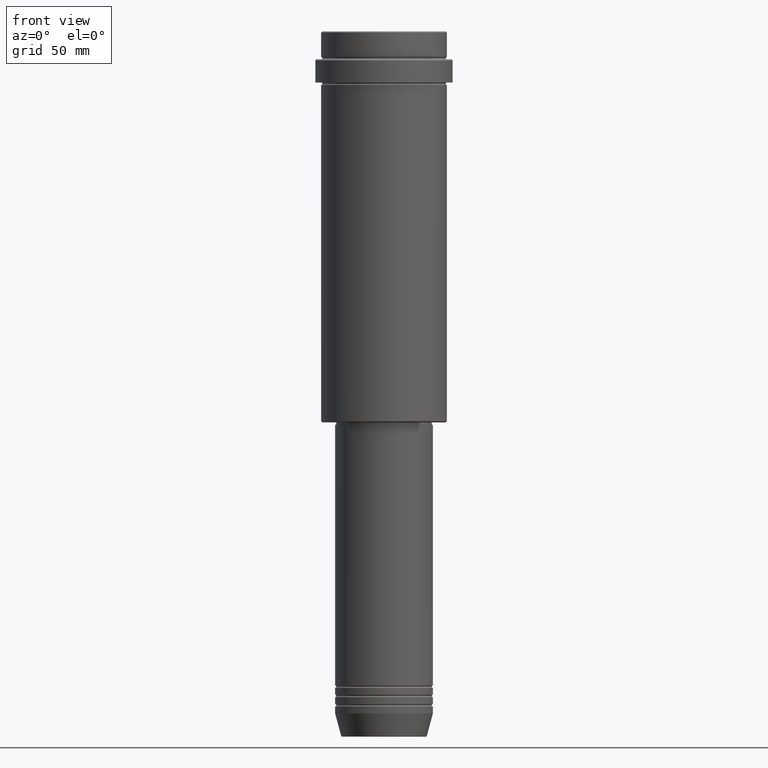
[diagram: clean part render]
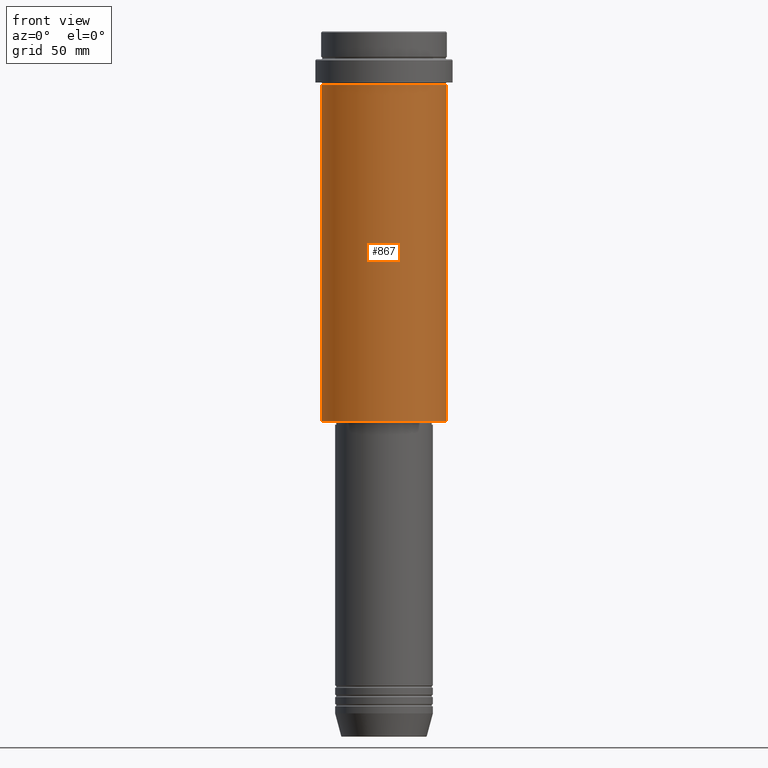
[diagram: same view with one face highlighted and labeled with its STEP entity id]
A machine part, front view. The second image highlights one B-rep face of the part: STEP entity #867.
In plain terms, the highlighted cylindrical surface (partial cylindrical patch) has radius 27 mm, axis along (-0, -0, 1).
Its self-contained STEP definition (entity closure, byte-faithful):
#12 = CARTESIAN_POINT ( 'NONE',  ( -27.00000000000000355, 3.306546357697854128E-15, -167.4999999999998863 ) ) ;
#14 = CARTESIAN_POINT ( 'NONE',  ( 0.000000000000000000, 0.000000000000000000, -167.4999999999998863 ) ) ;
#112 = EDGE_CURVE ( 'NONE', #1235, #725, #1195, .T. ) ;
#138 = DIRECTION ( 'NONE',  ( 1.000000000000000000, 0.000000000000000000, 0.000000000000000000 ) ) ;
#148 = DIRECTION ( 'NONE',  ( -0.000000000000000000, -0.000000000000000000, 1.000000000000000000 ) ) ;
#219 = EDGE_CURVE ( 'NONE', #789, #273, #1197, .T. ) ;
#273 = VERTEX_POINT ( 'NONE', #378 ) ;
#317 = EDGE_LOOP ( 'NONE', ( #362, #1416, #1361, #773 ) ) ;
#319 = CARTESIAN_POINT ( 'NONE',  ( 0.000000000000000000, 0.000000000000000000, 0.000000000000000000 ) ) ;
#357 = CARTESIAN_POINT ( 'NONE',  ( 0.000000000000000000, 0.000000000000000000, -23.00000000000001421 ) ) ;
#362 = ORIENTED_EDGE ( 'NONE', *, *, #940, .F. ) ;
#378 = CARTESIAN_POINT ( 'NONE',  ( 27.00000000000000355, 0.000000000000000000, -167.4999999999998863 ) ) ;
#384 = DIRECTION ( 'NONE',  ( -0.000000000000000000, -0.000000000000000000, 1.000000000000000000 ) ) ;
#393 = CARTESIAN_POINT ( 'NONE',  ( 27.00000000000000355, 0.000000000000000000, 0.000000000000000000 ) ) ;
#396 = VECTOR ( 'NONE', #148, 1000.000000000000000 ) ;
#420 = VECTOR ( 'NONE', #384, 1000.000000000000000 ) ;
#459 = CARTESIAN_POINT ( 'NONE',  ( -27.00000000000000355, 3.306546357697854128E-15, 0.000000000000000000 ) ) ;
#478 = LINE ( 'NONE', #459, #396 ) ;
#479 = DIRECTION ( 'NONE',  ( -0.000000000000000000, -0.000000000000000000, 1.000000000000000000 ) ) ;
#545 = DIRECTION ( 'NONE',  ( -1.000000000000000000, 0.000000000000000000, 0.000000000000000000 ) ) ;
#582 = AXIS2_PLACEMENT_3D ( 'NONE', #357, #479, #916 ) ;
#604 = AXIS2_PLACEMENT_3D ( 'NONE', #319, #1092, #138 ) ;
#621 = LINE ( 'NONE', #393, #420 ) ;
#651 = DIRECTION ( 'NONE',  ( -0.000000000000000000, -0.000000000000000000, 1.000000000000000000 ) ) ;
#661 = EDGE_CURVE ( 'NONE', #273, #725, #621, .T. ) ;
#725 = VERTEX_POINT ( 'NONE', #941 ) ;
#773 = ORIENTED_EDGE ( 'NONE', *, *, #112, .F. ) ;
#789 = VERTEX_POINT ( 'NONE', #12 ) ;
#860 = FACE_OUTER_BOUND ( 'NONE', #317, .T. ) ;
#867 = ADVANCED_FACE ( 'NONE', ( #860 ), #1293, .T. ) ;
#916 = DIRECTION ( 'NONE',  ( 1.000000000000000000, 0.000000000000000000, 0.000000000000000000 ) ) ;
#940 = EDGE_CURVE ( 'NONE', #789, #1235, #478, .T. ) ;
#941 = CARTESIAN_POINT ( 'NONE',  ( 27.00000000000000355, 0.000000000000000000, -23.00000000000001421 ) ) ;
#963 = AXIS2_PLACEMENT_3D ( 'NONE', #14, #651, #545 ) ;
#1092 = DIRECTION ( 'NONE',  ( -0.000000000000000000, -0.000000000000000000, 1.000000000000000000 ) ) ;
#1195 = CIRCLE ( 'NONE', #582, 27.00000000000000355 ) ;
#1197 = CIRCLE ( 'NONE', #963, 27.00000000000000355 ) ;
#1235 = VERTEX_POINT ( 'NONE', #1411 ) ;
#1293 = CYLINDRICAL_SURFACE ( 'NONE', #604, 27.00000000000000355 ) ;
#1361 = ORIENTED_EDGE ( 'NONE', *, *, #661, .T. ) ;
#1411 = CARTESIAN_POINT ( 'NONE',  ( -27.00000000000000355, 3.306546357697854128E-15, -23.00000000000001421 ) ) ;
#1416 = ORIENTED_EDGE ( 'NONE', *, *, #219, .T. ) ;